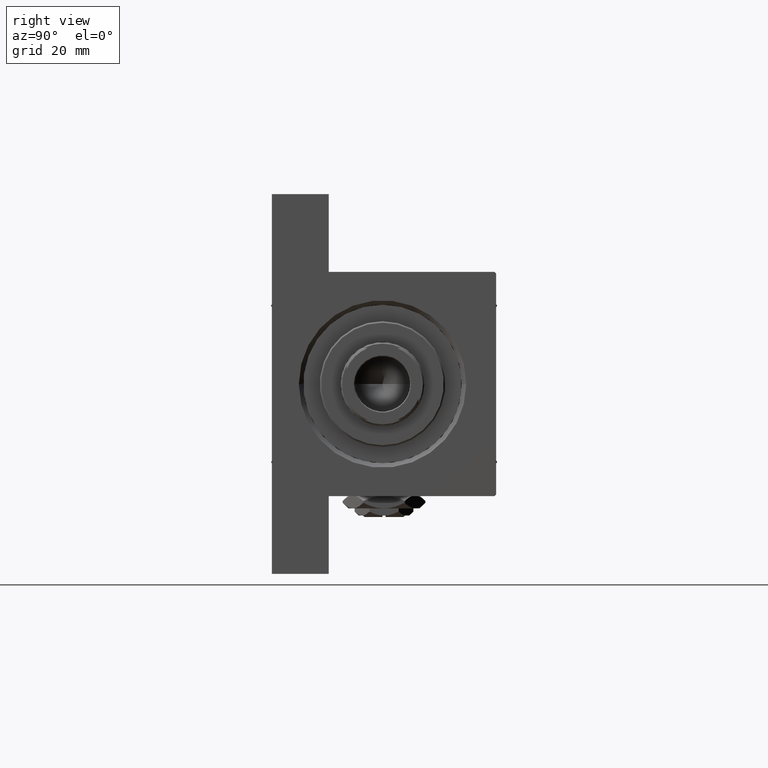
[diagram: clean part render]
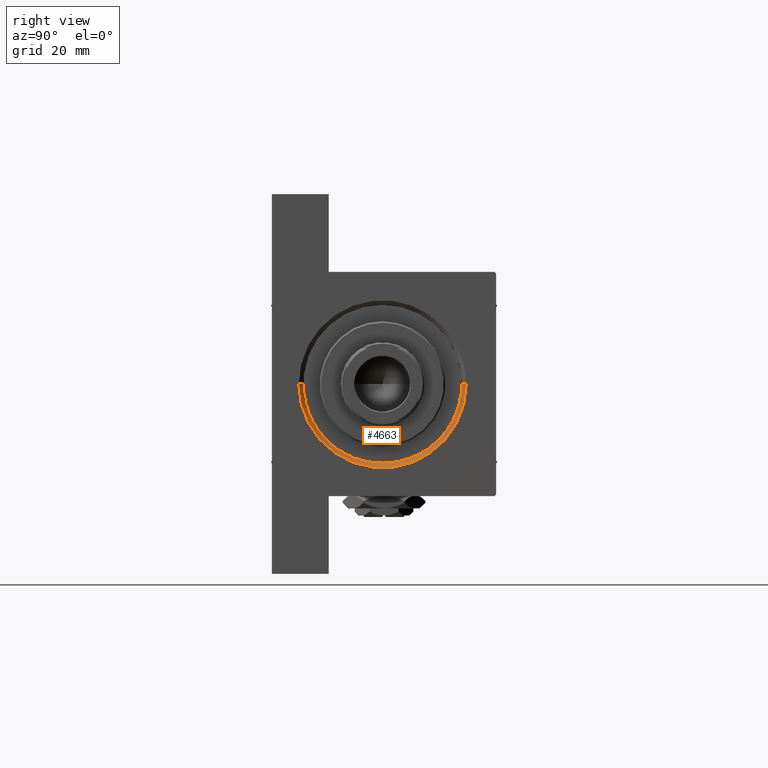
[diagram: same view with one face highlighted and labeled with its STEP entity id]
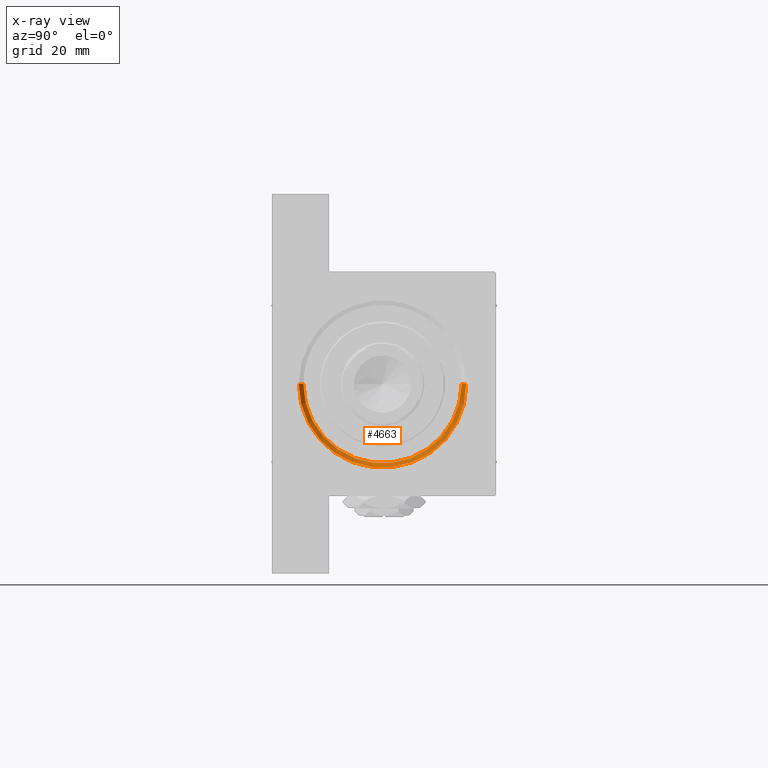
[diagram: x-ray of the same camera — body ghosted, the highlighted face saturated]
A machine part, right view. The second image highlights one B-rep face of the part: STEP entity #4663.
The next image is the same camera in x-ray: the body ghosted, the highlighted face saturated — about 0% of this face is hidden behind the body in this view.
In plain terms, the highlighted conical surface has half-angle 45 deg.
Its self-contained STEP definition (entity closure, byte-faithful):
#2897 = DIRECTION ( 'NONE',  ( 1.000000000000000000, 0.000000000000000000, 0.000000000000000000 ) ) ;
#3069 = CIRCLE ( 'NONE', #15103, 26.50000000000000355 ) ;
#3422 = EDGE_LOOP ( 'NONE', ( #19211, #34696, #28021, #13893 ) ) ;
#4293 = FACE_OUTER_BOUND ( 'NONE', #3422, .T. ) ;
#4475 = VERTEX_POINT ( 'NONE', #47441 ) ;
#4663 = ADVANCED_FACE ( 'NONE', ( #4293 ), #19542, .F. ) ;
#7652 = CARTESIAN_POINT ( 'NONE',  ( 152.5000000000000568, 3.245314017740486554E-15, 26.00000000000000355 ) ) ;
#9108 = CARTESIAN_POINT ( 'NONE',  ( 154.0000000000000000, 0.000000000000000000, -0.5000000000000004441 ) ) ;
#9916 = CARTESIAN_POINT ( 'NONE',  ( 152.5000000000000568, 0.000000000000000000, -0.5000000000000004441 ) ) ;
#12811 = VECTOR ( 'NONE', #22935, 1000.000000000000114 ) ;
#13893 = ORIENTED_EDGE ( 'NONE', *, *, #43898, .F. ) ;
#15103 = AXIS2_PLACEMENT_3D ( 'NONE', #9916, #2897, #41258 ) ;
#15583 = CARTESIAN_POINT ( 'NONE',  ( 152.5000000000000568, 0.000000000000000000, -0.5000000000000004441 ) ) ;
#15942 = EDGE_CURVE ( 'NONE', #4475, #45677, #42006, .T. ) ;
#16238 = CARTESIAN_POINT ( 'NONE',  ( 154.0000000000000000, 0.000000000000000000, -28.49999999999999645 ) ) ;
#17344 = VERTEX_POINT ( 'NONE', #16238 ) ;
#19211 = ORIENTED_EDGE ( 'NONE', *, *, #15942, .F. ) ;
#19542 = CONICAL_SURFACE ( 'NONE', #22736, 26.50000000000000355, 0.7853981633974644883 ) ;
#21064 = CARTESIAN_POINT ( 'NONE',  ( 154.0000000000000000, 3.429011037612588881E-15, 27.49999999999999645 ) ) ;
#22736 = AXIS2_PLACEMENT_3D ( 'NONE', #15583, #30376, #30877 ) ;
#22935 = DIRECTION ( 'NONE',  ( 0.7071067811865361374, 8.659560562355073374E-17, 0.7071067811865588970 ) ) ;
#25032 = DIRECTION ( 'NONE',  ( 0.7071067811865361374, 0.000000000000000000, -0.7071067811865588970 ) ) ;
#28021 = ORIENTED_EDGE ( 'NONE', *, *, #30080, .T. ) ;
#30080 = EDGE_CURVE ( 'NONE', #37344, #17344, #40081, .T. ) ;
#30376 = DIRECTION ( 'NONE',  ( 1.000000000000000000, 0.000000000000000000, 0.000000000000000000 ) ) ;
#30877 = DIRECTION ( 'NONE',  ( 0.000000000000000000, 0.000000000000000000, -1.000000000000000000 ) ) ;
#31435 = DIRECTION ( 'NONE',  ( 0.000000000000000000, 0.000000000000000000, 1.000000000000000000 ) ) ;
#31689 = DIRECTION ( 'NONE',  ( -1.000000000000000000, -0.000000000000000000, 0.000000000000000000 ) ) ;
#32780 = CIRCLE ( 'NONE', #37592, 27.99999999999999645 ) ;
#34696 = ORIENTED_EDGE ( 'NONE', *, *, #39701, .F. ) ;
#36327 = CARTESIAN_POINT ( 'NONE',  ( 152.5000000000000568, 0.000000000000000000, -27.00000000000000355 ) ) ;
#37344 = VERTEX_POINT ( 'NONE', #37550 ) ;
#37550 = CARTESIAN_POINT ( 'NONE',  ( 152.5000000000000568, 0.000000000000000000, -27.00000000000000355 ) ) ;
#37592 = AXIS2_PLACEMENT_3D ( 'NONE', #9108, #31689, #31435 ) ;
#39701 = EDGE_CURVE ( 'NONE', #37344, #4475, #3069, .T. ) ;
#40081 = LINE ( 'NONE', #36327, #43582 ) ;
#41258 = DIRECTION ( 'NONE',  ( 0.000000000000000000, 0.000000000000000000, 1.000000000000000000 ) ) ;
#42006 = LINE ( 'NONE', #7652, #12811 ) ;
#43582 = VECTOR ( 'NONE', #25032, 1000.000000000000114 ) ;
#43898 = EDGE_CURVE ( 'NONE', #45677, #17344, #32780, .T. ) ;
#45677 = VERTEX_POINT ( 'NONE', #21064 ) ;
#47441 = CARTESIAN_POINT ( 'NONE',  ( 152.5000000000000568, 3.245314017740486554E-15, 26.00000000000000355 ) ) ;